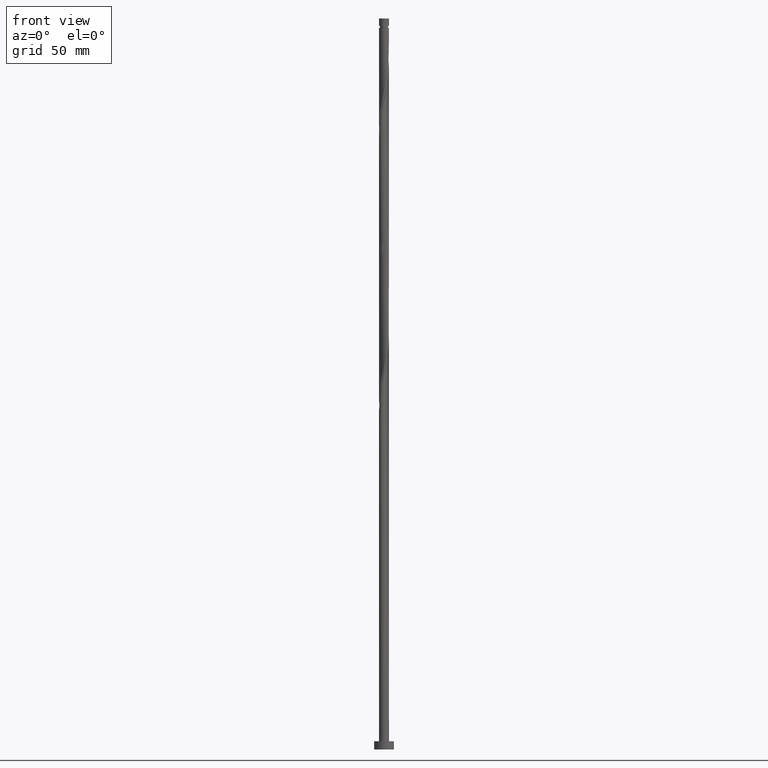
[diagram: clean part render]
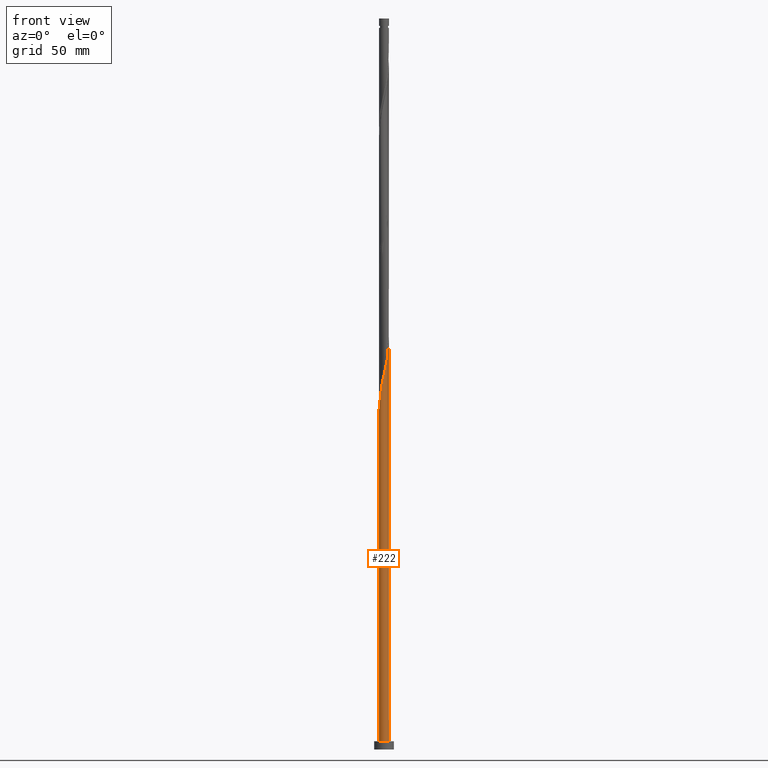
[diagram: same view with one face highlighted and labeled with its STEP entity id]
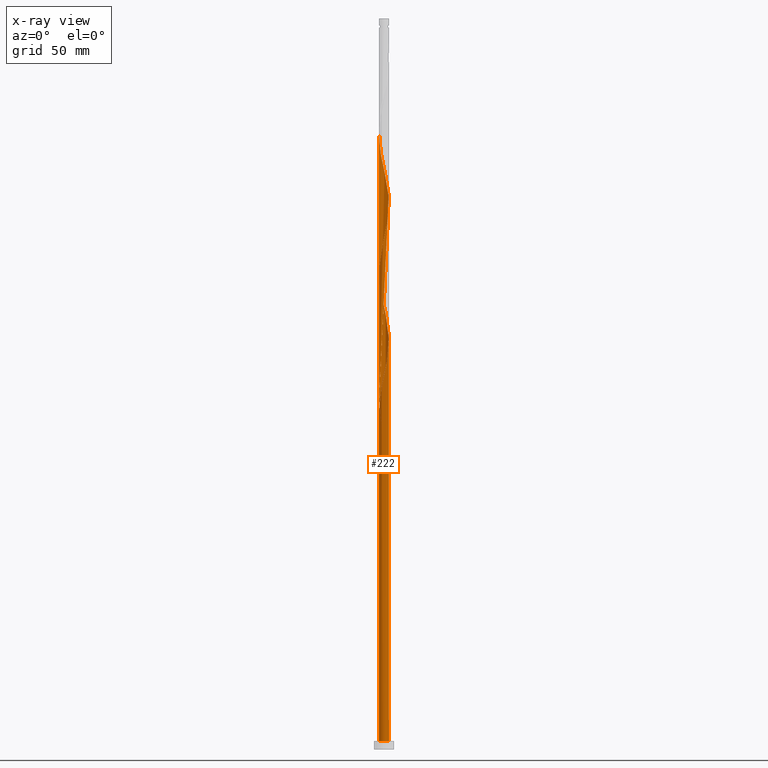
[diagram: x-ray of the same camera — body ghosted, the highlighted face saturated]
A machine part, front view. The second image highlights one B-rep face of the part: STEP entity #222.
The next image is the same camera in x-ray: the body ghosted, the highlighted face saturated — about 0% of this face is hidden behind the body in this view.
In plain terms, the highlighted cylindrical surface (bore or boss wall) has radius 3 mm, axis along (-0, -0, -1).
Its self-contained STEP definition (entity closure, byte-faithful):
#9 = CARTESIAN_POINT ( 'NONE',  ( -0.01195587277276921601, 2.999976176089782065, 269.0479287212957615 ) ) ;
#20 = CARTESIAN_POINT ( 'NONE',  ( -0.8865571881340393867, 2.881201374597976095, 189.6208453879623335 ) ) ;
#21 = CARTESIAN_POINT ( 'NONE',  ( -1.903086606305709028, -2.337855080563639998, 301.6000120546290191 ) ) ;
#28 = CARTESIAN_POINT ( 'NONE',  ( -1.676638408102570255, 2.487746701027922391, 193.5270953879623619 ) ) ;
#30 = CARTESIAN_POINT ( 'NONE',  ( -1.159086966227606430, 2.767041272681221464, 274.2562620546290191 ) ) ;
#31 = EDGE_LOOP ( 'NONE', ( #207, #315, #1346, #941, #279, #1959, #1015, #1103, #529 ) ) ;
#48 = CARTESIAN_POINT ( 'NONE',  ( 0.8635643575599528665, 2.888176173499372723, 348.4750120546290759 ) ) ;
#61 = CARTESIAN_POINT ( 'NONE',  ( -1.431616744321173806, 2.652881170764466834, 358.8916787212957615 ) ) ;
#69 = CARTESIAN_POINT ( 'NONE',  ( -0.8865571881340393867, 2.881201374597976095, 356.2875120546290759 ) ) ;
#81 = CARTESIAN_POINT ( 'NONE',  ( 2.998798625402032236, 0.3074277363939130758, 332.8500120546290759 ) ) ;
#86 = CARTESIAN_POINT ( 'NONE',  ( -3.000000000000000444, 0.000000000000000000, 444.0000000000000000 ) ) ;
#108 = CARTESIAN_POINT ( 'NONE',  ( -3.000000000000004885, -0.005977960122789493028, 206.5215852978161877 ) ) ;
#116 = CARTESIAN_POINT ( 'NONE',  ( -2.487746701027919283, 1.676638408102567590, 203.9437620546290191 ) ) ;
#128 = CARTESIAN_POINT ( 'NONE',  ( -3.000000000000000444, -1.302817129585864256E-15, 211.8089590326259213 ) ) ;
#131 = CARTESIAN_POINT ( 'NONE',  ( -0.2835159908483713687, -3.001153726777532782, 226.0791787212957900 ) ) ;
#147 = EDGE_CURVE ( 'NONE', #753, #1179, #318, .T. ) ;
#154 = CARTESIAN_POINT ( 'NONE',  ( 2.776191901540429274, -1.136995393931462983, 326.3395953879623903 ) ) ;
#161 = CARTESIAN_POINT ( 'NONE',  ( 0.5969924622639761758, 2.939999999999999503, 188.3187620546290759 ) ) ;
#164 = CARTESIAN_POINT ( 'NONE',  ( 2.652881170764466834, 1.431616744321172696, 254.7250120546291043 ) ) ;
#171 =( BOUNDED_CURVE ( )  B_SPLINE_CURVE ( 2, ( #1779, #1932, #1051, #463, #1026, #749, #884, #569, #116, #874, #1945, #1789, #1810, #1640, #1362, #579, #312, #1184, #1517, #420, #161 ),
 .UNSPECIFIED., .F., .T. ) 
 B_SPLINE_CURVE_WITH_KNOTS ( ( 3, 2, 2, 2, 2, 2, 2, 2, 2, 2, 3 ),
 ( 0.9295286902180872612, 0.9296875000000000000, 0.9375000000000000000, 0.9453125000000000000, 0.9531250000000000000, 0.9609375000000000000, 0.9687500000000000000, 0.9765625000000000000, 0.9843750000000000000, 0.9921875000000000000, 1.000000000000000000 ),
 .UNSPECIFIED. ) 
 CURVE ( )  GEOMETRIC_REPRESENTATION_ITEM ( )  RATIONAL_B_SPLINE_CURVE ( ( 0.9089165573359684336, 0.9090019243628731926, 0.9090909090909650159, 0.9047133878838710119, 0.9090909090909650159, 0.9047133878838710119, 0.9090909090909650159, 0.9047133878838710119, 0.9090909090909650159, 0.9047133878838710119, 0.9090909090909650159, 0.9047133878838710119, 0.9090909090909650159, 0.9047133878838710119, 0.9090909090909650159, 0.9047133878838710119, 0.9090909090909650159, 0.9047133878838710119, 0.9090909090909650159, 0.9047133878838710119, 0.9090909090909650159 ) ) 
 REPRESENTATION_ITEM ( '' )  );
#173 = CARTESIAN_POINT ( 'NONE',  ( -1.431616744321173806, 2.652881170764466834, 275.5583453879625040 ) ) ;
#182 = CARTESIAN_POINT ( 'NONE',  ( 2.129757576223802129, -2.112849418798544487, 321.1312620546290759 ) ) ;
#190 = CARTESIAN_POINT ( 'NONE',  ( -1.136995393931462983, -2.776191901540429718, 305.5062620546290759 ) ) ;
#200 = DIRECTION ( 'NONE',  ( 0.000000000000000000, 0.000000000000000000, 1.000000000000000000 ) ) ;
#205 = AXIS2_PLACEMENT_3D ( 'NONE', #1144, #1106, #648 ) ;
#206 = CARTESIAN_POINT ( 'NONE',  ( -2.501031355072564910, 1.656756518304341119, 198.7354287212957331 ) ) ;
#207 = ORIENTED_EDGE ( 'NONE', *, *, #147, .F. ) ;
#222 = ADVANCED_FACE ( 'NONE', ( #367 ), #543, .T. ) ;
#228 = CARTESIAN_POINT ( 'NONE',  ( -3.000000000000004441, 2.165770392816543470E-15, 206.4952317432988877 ) ) ;
#254 = CARTESIAN_POINT ( 'NONE',  ( 0.01195587277276963928, -2.999976176089782065, 227.3812620546290759 ) ) ;
#262 = CARTESIAN_POINT ( 'NONE',  ( -1.136995393931462983, -2.776191901540429718, 222.1729287212957047 ) ) ;
#274 = CARTESIAN_POINT ( 'NONE',  ( 1.921660071883965815, -2.322612231291378837, 236.4958453879623903 ) ) ;
#279 = ORIENTED_EDGE ( 'NONE', *, *, #1928, .T. ) ;
#287 = CARTESIAN_POINT ( 'NONE',  ( -1.410426430302974765, -2.664207629581488046, 220.8708453879624187 ) ) ;
#305 = CARTESIAN_POINT ( 'NONE',  ( 0.8865571881340393867, -2.881201374597976095, 314.6208453879624471 ) ) ;
#312 = CARTESIAN_POINT ( 'NONE',  ( -0.5735401742041602580, 2.944664950138447868, 193.5270953879624187 ) ) ;
#314 = CARTESIAN_POINT ( 'NONE',  ( -2.652881170764466834, -1.431616744321172918, 296.3916787212956478 ) ) ;
#315 = ORIENTED_EDGE ( 'NONE', *, *, #1913, .F. ) ;
#318 = LINE ( 'NONE', #86, #461 ) ;
#324 = CARTESIAN_POINT ( 'NONE',  ( -0.3074277363939128538, 2.998798625402032236, 270.3500120546290759 ) ) ;
#334 = CARTESIAN_POINT ( 'NONE',  ( -1.410426430302974765, -2.664207629581488046, 304.2041787212958752 ) ) ;
#343 = CARTESIAN_POINT ( 'NONE',  ( 0.3074277363939118546, -2.998798625402032236, 312.0166787212957615 ) ) ;
#353 = CARTESIAN_POINT ( 'NONE',  ( -1.676638408102570255, 2.487746701027922391, 360.1937620546291896 ) ) ;
#367 = FACE_OUTER_BOUND ( 'NONE', #31, .T. ) ;
#374 = CARTESIAN_POINT ( 'NONE',  ( 2.940000000000004388, 0.5969924622639752876, 334.1520953879624471 ) ) ;
#382 = CARTESIAN_POINT ( 'NONE',  ( -2.337855080563640886, 1.903086606305708584, 364.1000120546290759 ) ) ;
#392 = CARTESIAN_POINT ( 'NONE',  ( -0.3074277363939128538, 2.998798625402032236, 353.6833453879624471 ) ) ;
#405 = CARTESIAN_POINT ( 'NONE',  ( -3.000000000000004441, 2.165770392816543470E-15, 206.4952317432988877 ) ) ;
#420 = CARTESIAN_POINT ( 'NONE',  ( 0.3074277363939126317, 2.998798625402028240, 189.6208453879623903 ) ) ;
#423 = CARTESIAN_POINT ( 'NONE',  ( 2.664207629581488046, -1.410426430302975875, 241.7041787212957900 ) ) ;
#446 = CARTESIAN_POINT ( 'NONE',  ( -1.903086606305709028, -2.337855080563639998, 218.2666787212957615 ) ) ;
#456 = CARTESIAN_POINT ( 'NONE',  ( 2.664207629581488046, -1.410426430302975875, 325.0375120546291328 ) ) ;
#461 = VECTOR ( 'NONE', #553, 1000.000000000000000 ) ;
#463 = CARTESIAN_POINT ( 'NONE',  ( -2.998798625402028240, 0.3074277363939125207, 210.4541787212957900 ) ) ;
#465 = CARTESIAN_POINT ( 'NONE',  ( 1.903086606305707473, 2.337855080563640886, 259.9333453879625040 ) ) ;
#474 = CARTESIAN_POINT ( 'NONE',  ( 1.136995393931462983, 2.776191901540429274, 263.8395953879624471 ) ) ;
#481 = CARTESIAN_POINT ( 'NONE',  ( -1.159086966227606430, 2.767041272681221464, 190.9229287212957900 ) ) ;
#482 = CARTESIAN_POINT ( 'NONE',  ( -2.487746701027922391, -1.676638408102569811, 297.6937620546290759 ) ) ;
#484 = CARTESIAN_POINT ( 'NONE',  ( -3.000000000000004441, 2.165770392816543470E-15, 206.4952317432988877 ) ) ;
#490 = CARTESIAN_POINT ( 'NONE',  ( -1.676638408102570255, 2.487746701027922391, 276.8604287212957615 ) ) ;
#502 = CARTESIAN_POINT ( 'NONE',  ( 2.767041272681221464, 1.159086966227606430, 336.7562620546290759 ) ) ;
#509 = CARTESIAN_POINT ( 'NONE',  ( -2.129757576223803017, 2.112849418798543599, 196.1312620546290475 ) ) ;
#510 = CARTESIAN_POINT ( 'NONE',  ( 2.944664950138450976, -0.5735401742041631445, 328.9437620546290759 ) ) ;
#520 = CARTESIAN_POINT ( 'NONE',  ( 2.112849418798544932, 2.129757576223801685, 341.9645953879625040 ) ) ;
#529 = ORIENTED_EDGE ( 'NONE', *, *, #1074, .F. ) ;
#535 = EDGE_CURVE ( 'NONE', #1113, #1360, #863, .T. ) ;
#538 = CARTESIAN_POINT ( 'NONE',  ( -3.000000000000007105, 0.2894394447869380604, 205.2192516378828770 ) ) ;
#539 = CARTESIAN_POINT ( 'NONE',  ( 0.5735401742041633666, 2.944664950138451420, 349.7770953879624471 ) ) ;
#543 = CYLINDRICAL_SURFACE ( 'NONE', #643, 3.000000000000000444 ) ;
#553 = DIRECTION ( 'NONE',  ( -0.000000000000000000, -0.000000000000000000, -1.000000000000000000 ) ) ;
#560 = CARTESIAN_POINT ( 'NONE',  ( -0.8635643575599522004, -2.888176173499372723, 223.4750120546290475 ) ) ;
#569 = CARTESIAN_POINT ( 'NONE',  ( -2.652881170764462393, 1.431616744321172252, 205.2458453879624187 ) ) ;
#579 = CARTESIAN_POINT ( 'NONE',  ( -0.8635643575599500910, 2.888176173499368282, 194.8291787212958184 ) ) ;
#583 = CARTESIAN_POINT ( 'NONE',  ( -2.999976176089781621, -0.01195587277277038521, 206.5479287212957331 ) ) ;
#602 = CARTESIAN_POINT ( 'NONE',  ( 1.676638408102569588, -2.487746701027923280, 318.5270953879623903 ) ) ;
#611 = CARTESIAN_POINT ( 'NONE',  ( 1.921660071883965815, -2.322612231291378837, 319.8291787212958752 ) ) ;
#619 = CARTESIAN_POINT ( 'NONE',  ( -2.129757576223803017, 2.112849418798543599, 279.4645953879624471 ) ) ;
#626 = CARTESIAN_POINT ( 'NONE',  ( -2.881201374597976095, -0.8865571881340394977, 293.7875120546290759 ) ) ;
#627 = VERTEX_POINT ( 'NONE', #845 ) ;
#635 = CARTESIAN_POINT ( 'NONE',  ( 2.487746701027922391, 1.676638408102570477, 256.0270953879623903 ) ) ;
#643 = AXIS2_PLACEMENT_3D ( 'NONE', #1736, #820, #673 ) ;
#648 = DIRECTION ( 'NONE',  ( 1.000000000000000000, 0.000000000000000000, 0.000000000000000000 ) ) ;
#660 = CARTESIAN_POINT ( 'NONE',  ( -2.888176173499372723, 0.8635643575599522004, 369.3083453879625040 ) ) ;
#668 = CARTESIAN_POINT ( 'NONE',  ( 3.001153726777532782, -0.2835159908483714797, 330.2458453879624471 ) ) ;
#672 = CARTESIAN_POINT ( 'NONE',  ( 0.000000000000000000, 0.000000000000000000, 5.000000000000000000 ) ) ;
#673 = DIRECTION ( 'NONE',  ( -1.000000000000000000, 0.000000000000000000, 0.000000000000000000 ) ) ;
#679 = CARTESIAN_POINT ( 'NONE',  ( 2.322612231291379281, 1.921660071883965593, 340.6625120546290191 ) ) ;
#681 = DIRECTION ( 'NONE',  ( 1.000000000000000000, 0.000000000000000000, 0.000000000000000000 ) ) ;
#710 = CARTESIAN_POINT ( 'NONE',  ( -2.112849418798544487, -2.129757576223802129, 216.9645953879624471 ) ) ;
#725 = EDGE_CURVE ( 'NONE', #1360, #627, #1521, .T. ) ;
#749 = CARTESIAN_POINT ( 'NONE',  ( -2.881201374597972098, 0.8865571881340387206, 207.8500120546290475 ) ) ;
#753 = VERTEX_POINT ( 'NONE', #977 ) ;
#762 = CARTESIAN_POINT ( 'NONE',  ( 2.888176173499372723, -0.8635643575599525334, 327.6416787212957615 ) ) ;
#764 = DIRECTION ( 'NONE',  ( -0.000000000000000000, -0.000000000000000000, -1.000000000000000000 ) ) ;
#773 = CARTESIAN_POINT ( 'NONE',  ( -2.501031355072564910, 1.656756518304341119, 282.0687620546290759 ) ) ;
#781 = CARTESIAN_POINT ( 'NONE',  ( -3.001153726777532782, 0.2835159908483710911, 288.5791787212957615 ) ) ;
#790 = CARTESIAN_POINT ( 'NONE',  ( -2.888176173499372723, 0.8635643575599522004, 285.9750120546290759 ) ) ;
#797 = CARTESIAN_POINT ( 'NONE',  ( -0.8635643575599522004, -2.888176173499372723, 306.8083453879625040 ) ) ;
#820 = DIRECTION ( 'NONE',  ( -0.000000000000000000, -0.000000000000000000, -1.000000000000000000 ) ) ;
#844 = AXIS2_PLACEMENT_3D ( 'NONE', #1219, #1477, #1821 ) ;
#845 = CARTESIAN_POINT ( 'NONE',  ( -3.000000000000000444, 0.000000000000000000, 5.000000000000000000 ) ) ;
#846 = CARTESIAN_POINT ( 'NONE',  ( -3.000000000000002220, 0.2894394447869581555, 371.8859183045494774 ) ) ;
#857 = CARTESIAN_POINT ( 'NONE',  ( -0.5735401742041619233, -2.944664950138451420, 224.7770953879624187 ) ) ;
#863 =( BOUNDED_CURVE ( )  B_SPLINE_CURVE ( 2, ( #1052, #20, #481, #939, #28, #1867, #509, #965, #206, #984, #1424, #1888, #1730, #538, #228 ),
 .UNSPECIFIED., .F., .T. ) 
 B_SPLINE_CURVE_WITH_KNOTS ( ( 3, 2, 2, 2, 2, 2, 2, 3 ),
 ( 0.000000000000000000, 0.007812500000000000000, 0.01562500000000000000, 0.02343749999999999653, 0.03125000000000000000, 0.03906250000000000000, 0.04687499999999999306, 0.05452869021808735839 ),
 .UNSPECIFIED. ) 
 CURVE ( )  GEOMETRIC_REPRESENTATION_ITEM ( )  RATIONAL_B_SPLINE_CURVE ( ( 0.9090909090909711221, 0.9047133878838770071, 0.9090909090909711221, 0.9047133878838770071, 0.9090909090909711221, 0.9047133878838770071, 0.9090909090909711221, 0.9047133878838770071, 0.9090909090909711221, 0.9047133878838770071, 0.9090909090909711221, 0.9047133878838770071, 0.9090909090909711221, 0.9048023726119687193, 0.9089165573359747619 ) ) 
 REPRESENTATION_ITEM ( '' )  );
#865 = CARTESIAN_POINT ( 'NONE',  ( 2.337855080563639998, -1.903086606305709028, 239.1000120546290759 ) ) ;
#874 = CARTESIAN_POINT ( 'NONE',  ( -2.322612231291373952, 1.921660071883963372, 202.6416787212957615 ) ) ;
#878 = CARTESIAN_POINT ( 'NONE',  ( 2.776191901540429274, -1.136995393931462983, 243.0062620546290475 ) ) ;
#884 = CARTESIAN_POINT ( 'NONE',  ( -2.767041272681216579, 1.159086966227605764, 206.5479287212957047 ) ) ;
#910 = AXIS2_PLACEMENT_3D ( 'NONE', #672, #200, #681 ) ;
#911 = CARTESIAN_POINT ( 'NONE',  ( 2.881201374597976539, 0.8865571881340380545, 252.1208453879624756 ) ) ;
#920 = VERTEX_POINT ( 'NONE', #1311 ) ;
#924 = CARTESIAN_POINT ( 'NONE',  ( -0.5735401742041619233, -2.944664950138451420, 308.1104287212957615 ) ) ;
#932 = CARTESIAN_POINT ( 'NONE',  ( -1.656756518304341341, -2.501031355072564910, 302.9020953879625040 ) ) ;
#939 = CARTESIAN_POINT ( 'NONE',  ( -1.431616744321173806, 2.652881170764466834, 192.2250120546290759 ) ) ;
#940 = CARTESIAN_POINT ( 'NONE',  ( 2.322612231291379281, 1.921660071883965593, 257.3291787212958184 ) ) ;
#941 = ORIENTED_EDGE ( 'NONE', *, *, #1481, .T. ) ;
#951 = CARTESIAN_POINT ( 'NONE',  ( -0.8865571881340393867, 2.881201374597976095, 272.9541787212958184 ) ) ;
#965 = CARTESIAN_POINT ( 'NONE',  ( -2.337855080563640886, 1.903086606305708584, 197.4333453879623619 ) ) ;
#966 = CARTESIAN_POINT ( 'NONE',  ( -0.5969924622639750655, 2.940000000000004388, 354.9854287212957615 ) ) ;
#969 = CARTESIAN_POINT ( 'NONE',  ( 3.000000000000000444, 0.000000000000000000, 5.000000000000000000 ) ) ;
#972 = VECTOR ( 'NONE', #764, 1000.000000000000000 ) ;
#977 = CARTESIAN_POINT ( 'NONE',  ( -3.000000000000004441, -2.013868252528636088E-15, 373.1618984099654313 ) ) ;
#984 = CARTESIAN_POINT ( 'NONE',  ( -2.664207629581488046, 1.410426430302974765, 200.0375120546290759 ) ) ;
#985 = CARTESIAN_POINT ( 'NONE',  ( 2.487746701027922391, 1.676638408102570477, 339.3604287212958184 ) ) ;
#989 = EDGE_CURVE ( 'NONE', #1113, #920, #1262, .T. ) ;
#1010 = CARTESIAN_POINT ( 'NONE',  ( -2.998798625402032236, -0.3074277363939120211, 207.8500120546290759 ) ) ;
#1015 = ORIENTED_EDGE ( 'NONE', *, *, #535, .F. ) ;
#1026 = CARTESIAN_POINT ( 'NONE',  ( -2.939999999999999503, 0.5969924622639757317, 209.1520953879623903 ) ) ;
#1036 = CARTESIAN_POINT ( 'NONE',  ( 1.431616744321172918, -2.652881170764466834, 233.8916787212958468 ) ) ;
#1051 = CARTESIAN_POINT ( 'NONE',  ( -2.999976176089777624, 0.01195587277277123349, 211.7562620546290759 ) ) ;
#1052 = CARTESIAN_POINT ( 'NONE',  ( -0.5969924622639750655, 2.940000000000004388, 188.3187620546290191 ) ) ;
#1054 = CARTESIAN_POINT ( 'NONE',  ( 0.01195587277276963928, -2.999976176089782065, 310.7145953879624471 ) ) ;
#1066 = CIRCLE ( 'NONE', #205, 3.000000000000000444 ) ;
#1067 = CARTESIAN_POINT ( 'NONE',  ( -0.5969924622639750655, 2.940000000000004388, 271.6520953879623903 ) ) ;
#1074 = EDGE_CURVE ( 'NONE', #1179, #920, #171, .T. ) ;
#1076 = CARTESIAN_POINT ( 'NONE',  ( 2.767041272681221464, 1.159086966227606430, 253.4229287212957331 ) ) ;
#1087 = CARTESIAN_POINT ( 'NONE',  ( 2.940000000000004388, 0.5969924622639752876, 250.8187620546290475 ) ) ;
#1096 = CARTESIAN_POINT ( 'NONE',  ( -2.940000000000004388, -0.5969924622639756207, 292.4854287212957615 ) ) ;
#1103 = ORIENTED_EDGE ( 'NONE', *, *, #989, .T. ) ;
#1106 = DIRECTION ( 'NONE',  ( 0.000000000000000000, 0.000000000000000000, 1.000000000000000000 ) ) ;
#1113 = VERTEX_POINT ( 'NONE', #1630 ) ;
#1117 = CARTESIAN_POINT ( 'NONE',  ( 2.652881170764466834, 1.431616744321172696, 338.0583453879624471 ) ) ;
#1124 = CARTESIAN_POINT ( 'NONE',  ( 1.656756518304341785, 2.501031355072564022, 344.5687620546289622 ) ) ;
#1136 = CARTESIAN_POINT ( 'NONE',  ( -2.129757576223803017, 2.112849418798543599, 362.7979287212956478 ) ) ;
#1144 = CARTESIAN_POINT ( 'NONE',  ( 0.000000000000000000, 0.000000000000000000, 5.000000000000000000 ) ) ;
#1176 = CARTESIAN_POINT ( 'NONE',  ( -2.767041272681221464, -1.159086966227606430, 211.7562620546290475 ) ) ;
#1179 = VERTEX_POINT ( 'NONE', #128 ) ;
#1184 = CARTESIAN_POINT ( 'NONE',  ( -0.2835159908483703139, 3.001153726777528341, 192.2250120546290759 ) ) ;
#1187 =( BOUNDED_CURVE ( )  B_SPLINE_CURVE ( 2, ( #405, #108, #583, #1010, #1772, #1337, #1176, #1949, #1609, #1792, #710, #446, #1492, #287, #262, #560, #857, #131, #254, #1461, #1922, #1353, #1963, #1036, #1318, #274, #1783, #865, #1935, #423, #878, #1480, #1520, #1231, #1239, #1399, #1087, #911, #1076, #164, #635, #940, #1529, #465, #1221, #1245, #474, #1539, #1548, #1392, #9, #324, #1067, #951, #30, #173, #490, #1676, #619, #1823, #773, #1848, #1385, #790, #1832, #781, #1687, #1982, #1096, #626, #1841, #314, #482, #1511, #1695, #21, #932, #334, #190, #797, #924, #1703, #1054, #343, #1406, #305, #1665, #1377, #602, #611, #182, #1209, #1812, #456, #154, #762, #510, #668, #1576, #81, #374, #1440, #502, #1117, #985, #679, #520, #1260, #1124, #1587, #1270, #48, #539, #1566, #1432, #392, #966, #69, #1286, #61, #353, #1879, #1136, #382, #1296, #1415, #1890, #660, #1858, #846, #1731 ),
 .UNSPECIFIED., .F., .T. ) 
 B_SPLINE_CURVE_WITH_KNOTS ( ( 3, 2, 2, 2, 2, 2, 2, 2, 2, 2, 2, 2, 2, 2, 2, 2, 2, 2, 2, 2, 2, 2, 2, 2, 2, 2, 2, 2, 2, 2, 2, 2, 2, 2, 2, 2, 2, 2, 2, 2, 2, 2, 2, 2, 2, 2, 2, 2, 2, 2, 2, 2, 2, 2, 2, 2, 2, 2, 2, 2, 2, 2, 2, 2, 2, 3 ),
 ( 0.05452869021808735839, 0.05468750000000000000, 0.06250000000000000000, 0.07031250000000000000, 0.07812500000000000000, 0.08593750000000000000, 0.09375000000000000000, 0.1015625000000000000, 0.1093750000000000000, 0.1171875000000000000, 0.1250000000000000000, 0.1328125000000000000, 0.1406250000000000000, 0.1484375000000000000, 0.1562500000000000000, 0.1640625000000000000, 0.1718750000000000000, 0.1796875000000000000, 0.1875000000000000000, 0.1953125000000000000, 0.2031250000000000000, 0.2109375000000000000, 0.2187500000000000000, 0.2265625000000000000, 0.2343750000000000000, 0.2421875000000000000, 0.2500000000000000000, 0.2578125000000000000, 0.2656250000000000000, 0.2734375000000000000, 0.2812500000000000000, 0.2890625000000000000, 0.2968750000000000000, 0.3046875000000000000, 0.3125000000000000000, 0.3203125000000000000, 0.3281250000000000000, 0.3359375000000000000, 0.3437500000000000000, 0.3515625000000000000, 0.3593750000000000000, 0.3671875000000000000, 0.3750000000000000000, 0.3828125000000000000, 0.3906250000000000000, 0.3984375000000000000, 0.4062500000000000000, 0.4140625000000000000, 0.4218750000000000000, 0.4296875000000000000, 0.4375000000000000000, 0.4453125000000000000, 0.4531250000000000000, 0.4609375000000000000, 0.4687500000000000000, 0.4765625000000000000, 0.4843750000000000000, 0.4921875000000000000, 0.5000000000000000000, 0.5078125000000000000, 0.5156250000000000000, 0.5234375000000000000, 0.5312500000000000000, 0.5390625000000000000, 0.5468750000000000000, 0.5545286902180868172 ),
 .UNSPECIFIED. ) 
 CURVE ( )  GEOMETRIC_REPRESENTATION_ITEM ( )  RATIONAL_B_SPLINE_CURVE ( ( 0.9089165573359747619, 0.9090019243628794099, 0.9090909090909711221, 0.9047133878838770071, 0.9090909090909711221, 0.9047133878838770071, 0.9090909090909711221, 0.9047133878838770071, 0.9090909090909711221, 0.9047133878838770071, 0.9090909090909711221, 0.9047133878838770071, 0.9090909090909711221, 0.9047133878838770071, 0.9090909090909711221, 0.9047133878838770071, 0.9090909090909711221, 0.9047133878838770071, 0.9090909090909711221, 0.9047133878838770071, 0.9090909090909711221, 0.9047133878838770071, 0.9090909090909711221, 0.9047133878838770071, 0.9090909090909711221, 0.9047133878838770071, 0.9090909090909711221, 0.9047133878838770071, 0.9090909090909711221, 0.9047133878838770071, 0.9090909090909711221, 0.9047133878838770071, 0.9090909090909711221, 0.9047133878838770071, 0.9090909090909711221, 0.9047133878838770071, 0.9090909090909711221, 0.9047133878838770071, 0.9090909090909711221, 0.9047133878838770071, 0.9090909090909711221, 0.9047133878838770071, 0.9090909090909711221, 0.9047133878838770071, 0.9090909090909711221, 0.9047133878838770071, 0.9090909090909711221, 0.9047133878838770071, 0.9090909090909711221, 0.9047133878838770071, 0.9090909090909711221, 0.9047133878838770071, 0.9090909090909711221, 0.9047133878838770071, 0.9090909090909711221, 0.9047133878838770071, 0.9090909090909711221, 0.9047133878838770071, 0.9090909090909711221, 0.9047133878838770071, 0.9090909090909711221, 0.9047133878838770071, 0.9090909090909711221, 0.9047133878838770071, 0.9090909090909711221, 0.9047133878838770071, 0.9090909090909711221, 0.9047133878838770071, 0.9090909090909711221, 0.9047133878838770071, 0.9090909090909711221, 0.9047133878838770071, 0.9090909090909711221, 0.9047133878838770071, 0.9090909090909711221, 0.9047133878838770071, 0.9090909090909711221, 0.9047133878838770071, 0.9090909090909711221, 0.9047133878838770071, 0.9090909090909711221, 0.9047133878838770071, 0.9090909090909711221, 0.9047133878838770071, 0.9090909090909711221, 0.9047133878838770071, 0.9090909090909711221, 0.9047133878838770071, 0.9090909090909711221, 0.9047133878838770071, 0.9090909090909711221, 0.9047133878838770071, 0.9090909090909711221, 0.9047133878838770071, 0.9090909090909711221, 0.9047133878838770071, 0.9090909090909711221, 0.9047133878838770071, 0.9090909090909711221, 0.9047133878838770071, 0.9090909090909711221, 0.9047133878838770071, 0.9090909090909711221, 0.9047133878838770071, 0.9090909090909711221, 0.9047133878838770071, 0.9090909090909711221, 0.9047133878838770071, 0.9090909090909711221, 0.9047133878838770071, 0.9090909090909711221, 0.9047133878838770071, 0.9090909090909711221, 0.9047133878838770071, 0.9090909090909711221, 0.9047133878838770071, 0.9090909090909711221, 0.9047133878838770071, 0.9090909090909711221, 0.9047133878838770071, 0.9090909090909711221, 0.9047133878838770071, 0.9090909090909711221, 0.9047133878838770071, 0.9090909090909711221, 0.9047133878838770071, 0.9090909090909711221, 0.9047133878838770071, 0.9090909090909711221, 0.9048023726119690524, 0.9089165573359740957 ) ) 
 REPRESENTATION_ITEM ( '' )  );
#1209 = CARTESIAN_POINT ( 'NONE',  ( 2.337855080563639998, -1.903086606305709028, 322.4333453879625608 ) ) ;
#1210 = CARTESIAN_POINT ( 'NONE',  ( -3.000000000000000444, 0.000000000000000000, 444.0000000000000000 ) ) ;
#1219 = CARTESIAN_POINT ( 'NONE',  ( 0.000000000000000000, 0.000000000000000000, 188.3187620546291043 ) ) ;
#1221 = CARTESIAN_POINT ( 'NONE',  ( 1.656756518304341785, 2.501031355072564022, 261.2354287212957615 ) ) ;
#1231 = CARTESIAN_POINT ( 'NONE',  ( 3.001153726777532782, -0.2835159908483714797, 246.9125120546290759 ) ) ;
#1239 = CARTESIAN_POINT ( 'NONE',  ( 2.999976176089782065, 0.01195587277276942591, 248.2145953879623335 ) ) ;
#1245 = CARTESIAN_POINT ( 'NONE',  ( 1.410426430302975875, 2.664207629581487602, 262.5375120546291328 ) ) ;
#1260 = CARTESIAN_POINT ( 'NONE',  ( 1.903086606305707473, 2.337855080563640886, 343.2666787212957615 ) ) ;
#1262 = CIRCLE ( 'NONE', #844, 3.000000000000000444 ) ;
#1270 = CARTESIAN_POINT ( 'NONE',  ( 1.136995393931462983, 2.776191901540429274, 347.1729287212957615 ) ) ;
#1286 = CARTESIAN_POINT ( 'NONE',  ( -1.159086966227606430, 2.767041272681221464, 357.5895953879625040 ) ) ;
#1296 = CARTESIAN_POINT ( 'NONE',  ( -2.501031355072564910, 1.656756518304341119, 365.4020953879623903 ) ) ;
#1311 = CARTESIAN_POINT ( 'NONE',  ( 0.5969924622639761758, 2.939999999999999503, 188.3187620546290475 ) ) ;
#1318 = CARTESIAN_POINT ( 'NONE',  ( 1.676638408102569588, -2.487746701027923280, 235.1937620546290759 ) ) ;
#1337 = CARTESIAN_POINT ( 'NONE',  ( -2.881201374597976095, -0.8865571881340394977, 210.4541787212957331 ) ) ;
#1346 = ORIENTED_EDGE ( 'NONE', *, *, #725, .T. ) ;
#1353 = CARTESIAN_POINT ( 'NONE',  ( 0.8865571881340393867, -2.881201374597976095, 231.2875120546290475 ) ) ;
#1360 = VERTEX_POINT ( 'NONE', #484 ) ;
#1362 = CARTESIAN_POINT ( 'NONE',  ( -1.136995393931461207, 2.776191901540425722, 196.1312620546290475 ) ) ;
#1377 = CARTESIAN_POINT ( 'NONE',  ( 1.431616744321172918, -2.652881170764466834, 317.2250120546291328 ) ) ;
#1385 = CARTESIAN_POINT ( 'NONE',  ( -2.776191901540429274, 1.136995393931463427, 284.6729287212958184 ) ) ;
#1392 = CARTESIAN_POINT ( 'NONE',  ( 0.2835159908483717017, 3.001153726777532782, 267.7458453879624471 ) ) ;
#1399 = CARTESIAN_POINT ( 'NONE',  ( 2.998798625402032236, 0.3074277363939130758, 249.5166787212957900 ) ) ;
#1406 = CARTESIAN_POINT ( 'NONE',  ( 0.5969924622639755096, -2.940000000000004388, 313.3187620546290191 ) ) ;
#1415 = CARTESIAN_POINT ( 'NONE',  ( -2.664207629581488046, 1.410426430302974765, 366.7041787212958752 ) ) ;
#1424 = CARTESIAN_POINT ( 'NONE',  ( -2.776191901540429274, 1.136995393931463427, 201.3395953879623903 ) ) ;
#1432 = CARTESIAN_POINT ( 'NONE',  ( -0.01195587277276921601, 2.999976176089782065, 352.3812620546291328 ) ) ;
#1440 = CARTESIAN_POINT ( 'NONE',  ( 2.881201374597976539, 0.8865571881340380545, 335.4541787212958752 ) ) ;
#1461 = CARTESIAN_POINT ( 'NONE',  ( 0.3074277363939118546, -2.998798625402032236, 228.6833453879624756 ) ) ;
#1477 = DIRECTION ( 'NONE',  ( 0.000000000000000000, -0.000000000000000000, -1.000000000000000000 ) ) ;
#1480 = CARTESIAN_POINT ( 'NONE',  ( 2.888176173499372723, -0.8635643575599525334, 244.3083453879623903 ) ) ;
#1481 = EDGE_CURVE ( 'NONE', #627, #1530, #1733, .T. ) ;
#1492 = CARTESIAN_POINT ( 'NONE',  ( -1.656756518304341341, -2.501031355072564910, 219.5687620546290191 ) ) ;
#1511 = CARTESIAN_POINT ( 'NONE',  ( -2.322612231291378837, -1.921660071883965815, 298.9958453879625040 ) ) ;
#1517 = CARTESIAN_POINT ( 'NONE',  ( 0.01195587277277112247, 2.999976176089777624, 190.9229287212957047 ) ) ;
#1520 = CARTESIAN_POINT ( 'NONE',  ( 2.944664950138450976, -0.5735401742041631445, 245.6104287212957331 ) ) ;
#1521 = LINE ( 'NONE', #1210, #972 ) ;
#1529 = CARTESIAN_POINT ( 'NONE',  ( 2.112849418798544932, 2.129757576223801685, 258.6312620546290759 ) ) ;
#1530 = VERTEX_POINT ( 'NONE', #969 ) ;
#1539 = CARTESIAN_POINT ( 'NONE',  ( 0.8635643575599528665, 2.888176173499372723, 265.1416787212957615 ) ) ;
#1548 = CARTESIAN_POINT ( 'NONE',  ( 0.5735401742041633666, 2.944664950138451420, 266.4437620546290759 ) ) ;
#1566 = CARTESIAN_POINT ( 'NONE',  ( 0.2835159908483717017, 3.001153726777532782, 351.0791787212958752 ) ) ;
#1576 = CARTESIAN_POINT ( 'NONE',  ( 2.999976176089782065, 0.01195587277276942591, 331.5479287212957615 ) ) ;
#1587 = CARTESIAN_POINT ( 'NONE',  ( 1.410426430302975875, 2.664207629581487602, 345.8708453879623903 ) ) ;
#1609 = CARTESIAN_POINT ( 'NONE',  ( -2.487746701027922391, -1.676638408102569811, 214.3604287212957615 ) ) ;
#1630 = CARTESIAN_POINT ( 'NONE',  ( -0.5969924622639750655, 2.940000000000004388, 188.3187620546290475 ) ) ;
#1640 = CARTESIAN_POINT ( 'NONE',  ( -1.410426430302972101, 2.664207629581484937, 197.4333453879623335 ) ) ;
#1665 = CARTESIAN_POINT ( 'NONE',  ( 1.159086966227606430, -2.767041272681221020, 315.9229287212957047 ) ) ;
#1676 = CARTESIAN_POINT ( 'NONE',  ( -1.921660071883965815, 2.322612231291378837, 278.1625120546291896 ) ) ;
#1687 = CARTESIAN_POINT ( 'NONE',  ( -2.999976176089781621, -0.01195587277277038521, 289.8812620546290759 ) ) ;
#1695 = CARTESIAN_POINT ( 'NONE',  ( -2.112849418798544487, -2.129757576223802129, 300.2979287212957615 ) ) ;
#1703 = CARTESIAN_POINT ( 'NONE',  ( -0.2835159908483713687, -3.001153726777532782, 309.4125120546291328 ) ) ;
#1730 = CARTESIAN_POINT ( 'NONE',  ( -2.944664950138451420, 0.5735401742041615902, 203.9437620546290191 ) ) ;
#1731 = CARTESIAN_POINT ( 'NONE',  ( -3.000000000000004441, -2.013868252528636088E-15, 373.1618984099654313 ) ) ;
#1733 = CIRCLE ( 'NONE', #910, 3.000000000000000444 ) ;
#1736 = CARTESIAN_POINT ( 'NONE',  ( 0.000000000000000000, 0.000000000000000000, 444.0000000000000000 ) ) ;
#1772 = CARTESIAN_POINT ( 'NONE',  ( -2.940000000000004388, -0.5969924622639756207, 209.1520953879624187 ) ) ;
#1779 = CARTESIAN_POINT ( 'NONE',  ( -3.000000000000000444, -1.302817129585864256E-15, 211.8089590326259213 ) ) ;
#1783 = CARTESIAN_POINT ( 'NONE',  ( 2.129757576223802129, -2.112849418798544487, 237.7979287212956763 ) ) ;
#1789 = CARTESIAN_POINT ( 'NONE',  ( -1.903086606305705031, 2.337855080563638221, 200.0375120546291043 ) ) ;
#1792 = CARTESIAN_POINT ( 'NONE',  ( -2.322612231291378837, -1.921660071883965815, 215.6625120546291043 ) ) ;
#1810 = CARTESIAN_POINT ( 'NONE',  ( -1.656756518304338899, 2.501031355072560913, 198.7354287212957615 ) ) ;
#1812 = CARTESIAN_POINT ( 'NONE',  ( 2.501031355072564910, -1.656756518304341785, 323.7354287212957047 ) ) ;
#1821 = DIRECTION ( 'NONE',  ( -1.000000000000000000, 0.000000000000000000, 0.000000000000000000 ) ) ;
#1823 = CARTESIAN_POINT ( 'NONE',  ( -2.337855080563640886, 1.903086606305708584, 280.7666787212957615 ) ) ;
#1832 = CARTESIAN_POINT ( 'NONE',  ( -2.944664950138451420, 0.5735401742041615902, 287.2770953879624471 ) ) ;
#1841 = CARTESIAN_POINT ( 'NONE',  ( -2.767041272681221464, -1.159086966227606430, 295.0895953879624471 ) ) ;
#1848 = CARTESIAN_POINT ( 'NONE',  ( -2.664207629581488046, 1.410426430302974765, 283.3708453879625040 ) ) ;
#1858 = CARTESIAN_POINT ( 'NONE',  ( -2.944664950138451420, 0.5735401742041615902, 370.6104287212957615 ) ) ;
#1867 = CARTESIAN_POINT ( 'NONE',  ( -1.921660071883965815, 2.322612231291378837, 194.8291787212957615 ) ) ;
#1879 = CARTESIAN_POINT ( 'NONE',  ( -1.921660071883965815, 2.322612231291378837, 361.4958453879625040 ) ) ;
#1888 = CARTESIAN_POINT ( 'NONE',  ( -2.888176173499372723, 0.8635643575599522004, 202.6416787212957615 ) ) ;
#1890 = CARTESIAN_POINT ( 'NONE',  ( -2.776191901540429274, 1.136995393931463427, 368.0062620546290759 ) ) ;
#1913 = EDGE_CURVE ( 'NONE', #1360, #753, #1187, .T. ) ;
#1922 = CARTESIAN_POINT ( 'NONE',  ( 0.5969924622639755096, -2.940000000000004388, 229.9854287212957331 ) ) ;
#1928 = EDGE_CURVE ( 'NONE', #1530, #627, #1066, .T. ) ;
#1932 = CARTESIAN_POINT ( 'NONE',  ( -3.000000000000000888, 0.005977960122786694051, 211.7826054781086498 ) ) ;
#1935 = CARTESIAN_POINT ( 'NONE',  ( 2.501031355072564910, -1.656756518304341785, 240.4020953879623335 ) ) ;
#1945 = CARTESIAN_POINT ( 'NONE',  ( -2.112849418798539602, 2.129757576223800797, 201.3395953879623903 ) ) ;
#1949 = CARTESIAN_POINT ( 'NONE',  ( -2.652881170764466834, -1.431616744321172918, 213.0583453879623903 ) ) ;
#1959 = ORIENTED_EDGE ( 'NONE', *, *, #725, .F. ) ;
#1963 = CARTESIAN_POINT ( 'NONE',  ( 1.159086966227606430, -2.767041272681221020, 232.5895953879623903 ) ) ;
#1982 = CARTESIAN_POINT ( 'NONE',  ( -2.998798625402032236, -0.3074277363939120211, 291.1833453879625040 ) ) ;